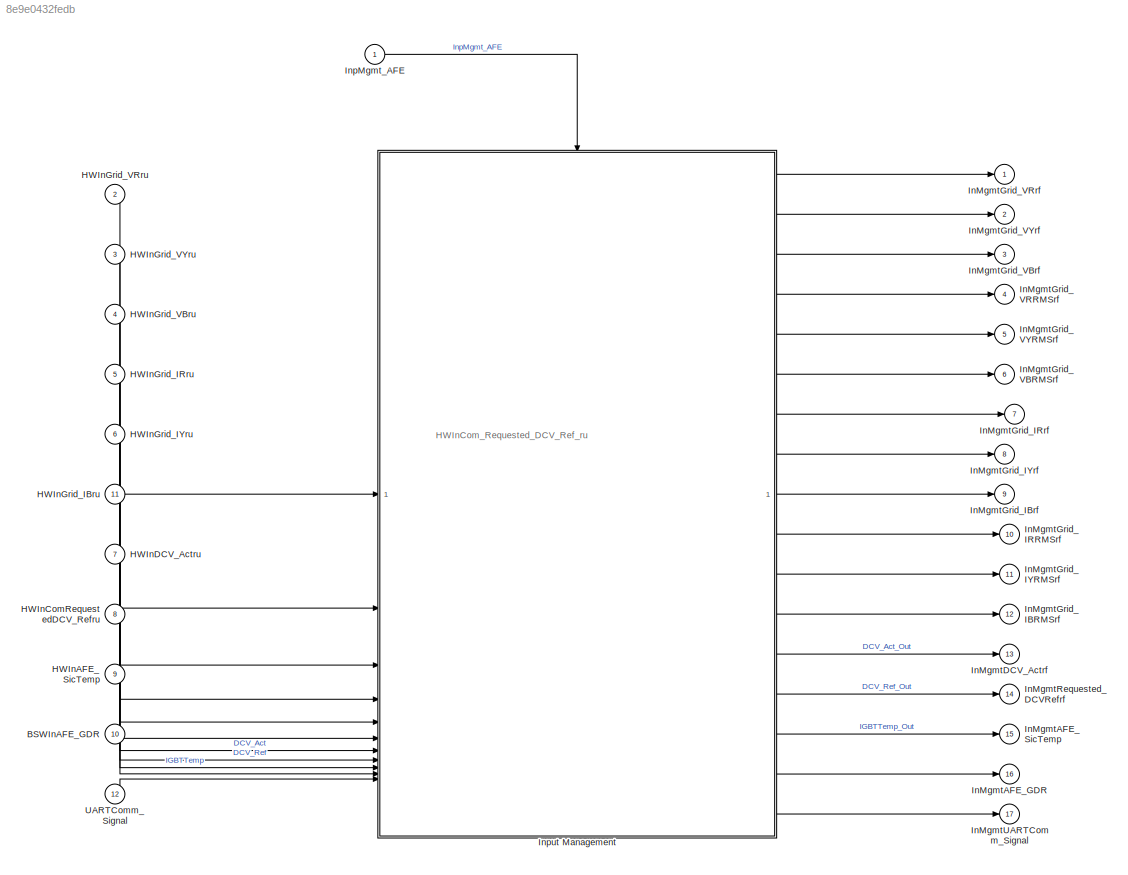
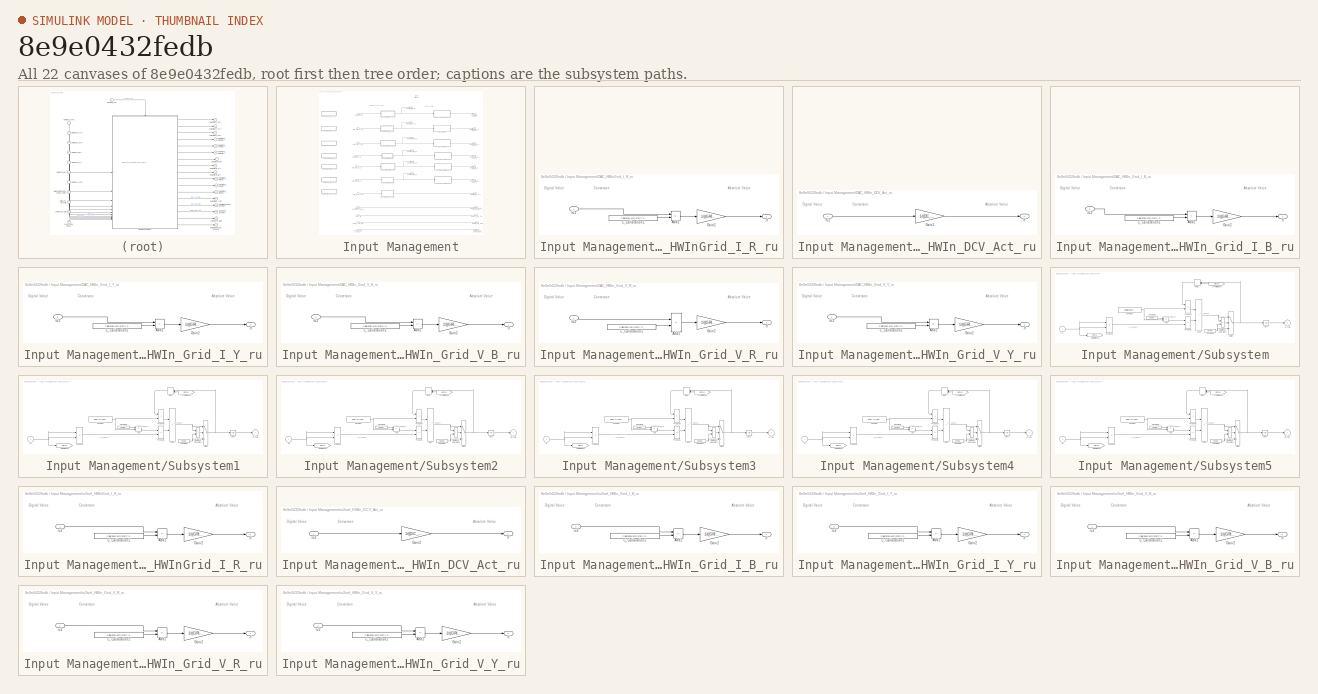
[diagram: thumbnail index - all 22 canvases of the model, root first then tree order]
MODEL slx_8e9e0432fedb
KIND model
BLOCK [Inport] BSWInAFE_GDR
  OutDataTypeStr = boolean
  Port = 10
BLOCK [Inport] HWInAFE_SicTemp
  OutDataTypeStr = boolean
  Port = 9
BLOCK [Inport] HWInComRequestedDCV_Refru
  OutDataTypeStr = uint16
  Port = 8
BLOCK [Inport] HWInDCV_Actru
  OutDataTypeStr = uint16
  Port = 7
BLOCK [Inport] HWInGrid_IBru
  OutDataTypeStr = uint16
  Port = 11
BLOCK [Inport] HWInGrid_IRru
  OutDataTypeStr = uint16
  Port = 5
BLOCK [Inport] HWInGrid_IYru
  OutDataTypeStr = uint16
  Port = 6
BLOCK [Inport] HWInGrid_VBru
  OutDataTypeStr = uint16
  Port = 4
BLOCK [Inport] HWInGrid_VRru
  OutDataTypeStr = single
  Port = 2
BLOCK [Inport] HWInGrid_VYru
  OutDataTypeStr = uint16
  Port = 3
BLOCK [Outport] InMgmtAFE_GDR
  OutDataTypeStr = boolean
  Port = 16
  VectorParamsAs1DForOutWhenUnconnected = off
BLOCK [Outport] InMgmtAFE_SicTemp
  OutDataTypeStr = boolean
  Port = 15
  VectorParamsAs1DForOutWhenUnconnected = off
BLOCK [Outport] InMgmtDCV_Actrf
  OutDataTypeStr = single
  Port = 13
  VectorParamsAs1DForOutWhenUnconnected = off
BLOCK [Outport] InMgmtGrid_IBRMSrf
  OutDataTypeStr = single
  Port = 12
  VectorParamsAs1DForOutWhenUnconnected = off
BLOCK [Outport] InMgmtGrid_IBrf
  OutDataTypeStr = single
  Port = 9
  VectorParamsAs1DForOutWhenUnconnected = off
BLOCK [Outport] InMgmtGrid_IRRMSrf
  OutDataTypeStr = single
  Port = 10
  VectorParamsAs1DForOutWhenUnconnected = off
BLOCK [Outport] InMgmtGrid_IRrf
  OutDataTypeStr = single
  Port = 7
  VectorParamsAs1DForOutWhenUnconnected = off
BLOCK [Outport] InMgmtGrid_IYRMSrf
  OutDataTypeStr = single
  Port = 11
  VectorParamsAs1DForOutWhenUnconnected = off
BLOCK [Outport] InMgmtGrid_IYrf
  OutDataTypeStr = single
  Port = 8
  VectorParamsAs1DForOutWhenUnconnected = off
BLOCK [Outport] InMgmtGrid_VBRMSrf
  OutDataTypeStr = single
  Port = 6
  VectorParamsAs1DForOutWhenUnconnected = off
BLOCK [Outport] InMgmtGrid_VBrf
  OutDataTypeStr = single
  Port = 3
  VectorParamsAs1DForOutWhenUnconnected = off
BLOCK [Outport] InMgmtGrid_VRRMSrf
  OutDataTypeStr = single
  Port = 4
  VectorParamsAs1DForOutWhenUnconnected = off
BLOCK [Outport] InMgmtGrid_VRrf
  OutDataTypeStr = single
  VectorParamsAs1DForOutWhenUnconnected = off
BLOCK [Outport] InMgmtGrid_VYRMSrf
  OutDataTypeStr = single
  Port = 5
  VectorParamsAs1DForOutWhenUnconnected = off
BLOCK [Outport] InMgmtGrid_VYrf
  OutDataTypeStr = single
  Port = 2
  VectorParamsAs1DForOutWhenUnconnected = off
BLOCK [Outport] InMgmtRequested_DCVRefrf
  OutDataTypeStr = uint16
  Port = 14
  VectorParamsAs1DForOutWhenUnconnected = off
BLOCK [Outport] InMgmtUARTComm_Signal
  OutDataTypeStr = boolean
  Port = 17
  VectorParamsAs1DForOutWhenUnconnected = off
BLOCK [Inport] InpMgmt_AFE
  Description = Inverter HVDC voltage
  OutMax = 1000
  OutMin = 0
  OutputFunctionCall = on
  PortDimensions = 1
  SampleTime = 0.001
  SamplingMode = Sample based
  SignalType = real
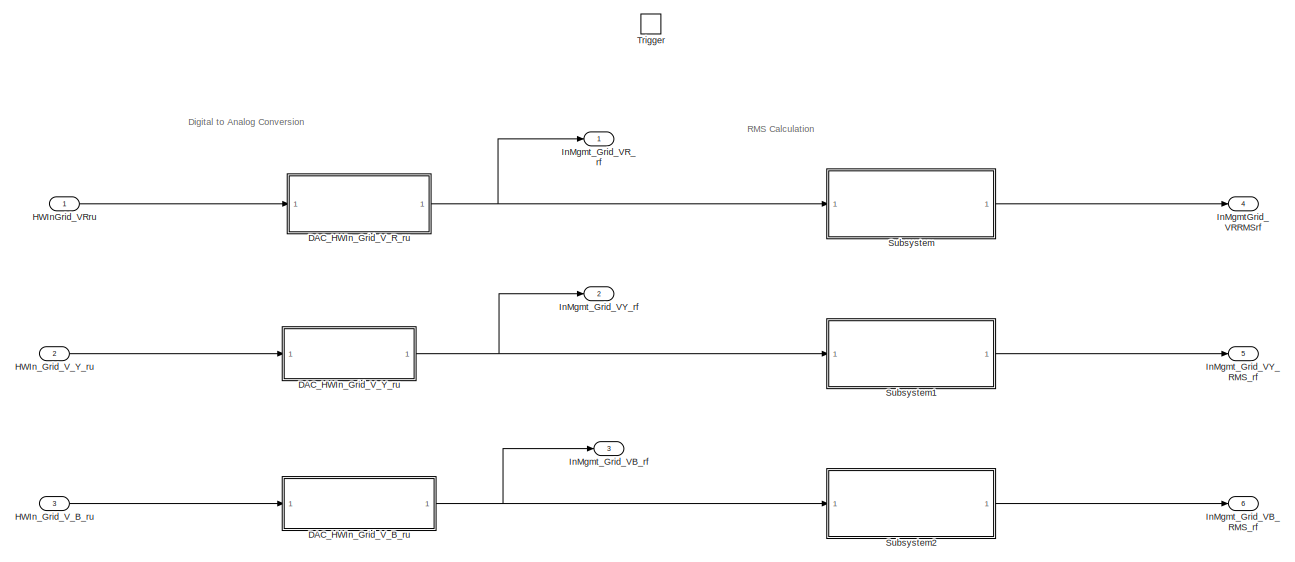
[diagram: Input Management - part 1/3, full width, top band]
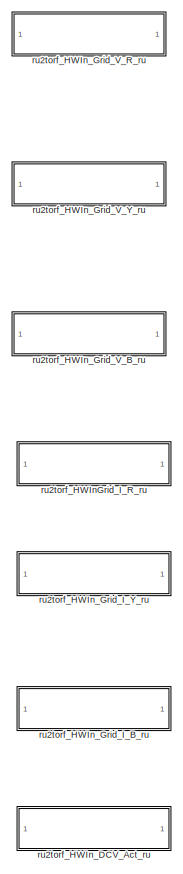
[diagram: Input Management - part 2/3, middle left region]
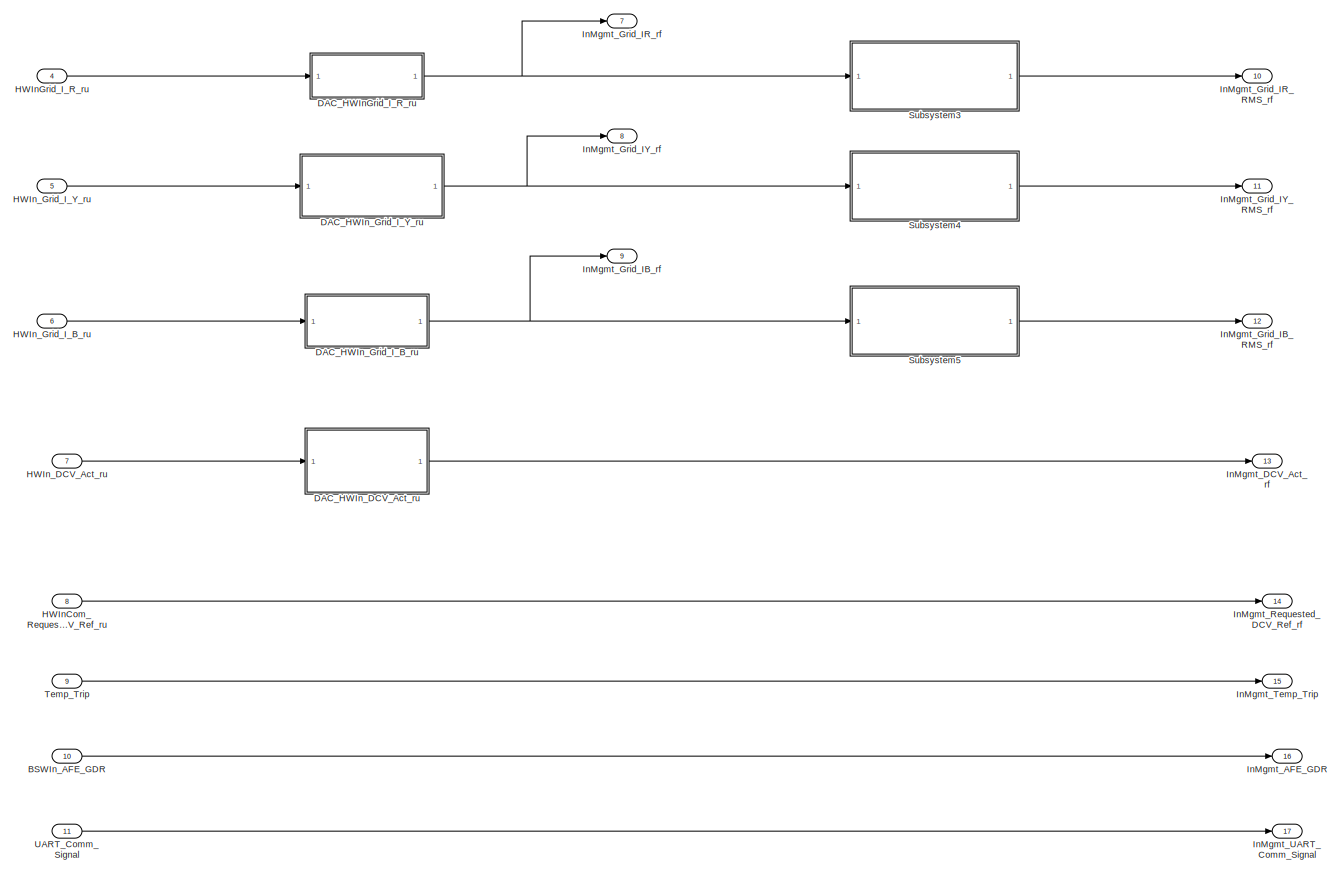
[diagram: Input Management - part 3/3, full width, bottom band]
BLOCK [SubSystem] Input Management
BLOCK [Inport] Input Management/BSWIn_AFE_GDR
  Port = 10
BLOCK [SubSystem] Input Management/DAC_HWInGrid_I_R_ru
BLOCK [Sum] Input Management/DAC_HWInGrid_I_R_ru/Add1
  IconShape = rectangular
  Inputs = +-
BLOCK [Reference] Input Management/DAC_HWInGrid_I_R_ru/C_Calibration1  REF=common_lib/IO/Calibration with Pretty
Print Value
  SourceBlock = common_lib/IO/Calibration with Pretty\nPrint Value
  SourceType = Calibratible Input
BLOCK [Gain] Input Management/DAC_HWInGrid_I_R_ru/Gain2
  Gain = 1/((GRID_CURR_SNSR_GAIN)*(GRID_CURR_ADC_GAIN))
BLOCK [Outport] Input Management/DAC_HWInGrid_I_R_ru/rf
BLOCK [Inport] Input Management/DAC_HWInGrid_I_R_ru/ru2
BLOCK [SubSystem] Input Management/DAC_HWIn_DCV_Act_ru
BLOCK [Gain] Input Management/DAC_HWIn_DCV_Act_ru/Gain2
  Gain = 1/((DC_VOLT_SNSR_GAIN)*(DC_VOLT_ADC_GAIN))
  OutDataTypeStr = single
BLOCK [Outport] Input Management/DAC_HWIn_DCV_Act_ru/rf
BLOCK [Inport] Input Management/DAC_HWIn_DCV_Act_ru/ru2
BLOCK [SubSystem] Input Management/DAC_HWIn_Grid_I_B_ru
BLOCK [Sum] Input Management/DAC_HWIn_Grid_I_B_ru/Add1
  IconShape = rectangular
  Inputs = +-
BLOCK [Reference] Input Management/DAC_HWIn_Grid_I_B_ru/C_Calibration1  REF=common_lib/IO/Calibration with Pretty
Print Value
  SourceBlock = common_lib/IO/Calibration with Pretty\nPrint Value
  SourceType = Calibratible Input
BLOCK [Gain] Input Management/DAC_HWIn_Grid_I_B_ru/Gain2
  Gain = 1/((GRID_CURR_SNSR_GAIN)*(GRID_CURR_ADC_GAIN))
BLOCK [Outport] Input Management/DAC_HWIn_Grid_I_B_ru/rf
BLOCK [Inport] Input Management/DAC_HWIn_Grid_I_B_ru/ru2
BLOCK [SubSystem] Input Management/DAC_HWIn_Grid_I_Y_ru
BLOCK [Sum] Input Management/DAC_HWIn_Grid_I_Y_ru/Add1
  IconShape = rectangular
  Inputs = +-
BLOCK [Reference] Input Management/DAC_HWIn_Grid_I_Y_ru/C_Calibration1  REF=common_lib/IO/Calibration with Pretty
Print Value
  SourceBlock = common_lib/IO/Calibration with Pretty\nPrint Value
  SourceType = Calibratible Input
BLOCK [Gain] Input Management/DAC_HWIn_Grid_I_Y_ru/Gain2
  Gain = 1/((GRID_CURR_SNSR_GAIN)*(GRID_CURR_ADC_GAIN))
BLOCK [Outport] Input Management/DAC_HWIn_Grid_I_Y_ru/rf
BLOCK [Inport] Input Management/DAC_HWIn_Grid_I_Y_ru/ru2
BLOCK [SubSystem] Input Management/DAC_HWIn_Grid_V_B_ru
BLOCK [Sum] Input Management/DAC_HWIn_Grid_V_B_ru/Add1
  IconShape = rectangular
  Inputs = +-
BLOCK [Reference] Input Management/DAC_HWIn_Grid_V_B_ru/C_Calibration1  REF=common_lib/IO/Calibration with Pretty
Print Value
  SourceBlock = common_lib/IO/Calibration with Pretty\nPrint Value
  SourceType = Calibratible Input
BLOCK [Gain] Input Management/DAC_HWIn_Grid_V_B_ru/Gain2
  Gain = 1/((GRID_VOLT_SNSR_GAIN)*(GRID_VOLT_ADC_GAIN))
BLOCK [Outport] Input Management/DAC_HWIn_Grid_V_B_ru/rf
BLOCK [Inport] Input Management/DAC_HWIn_Grid_V_B_ru/ru2
BLOCK [SubSystem] Input Management/DAC_HWIn_Grid_V_R_ru
BLOCK [Sum] Input Management/DAC_HWIn_Grid_V_R_ru/Add1
  IconShape = rectangular
  Inputs = +-
BLOCK [Reference] Input Management/DAC_HWIn_Grid_V_R_ru/C_Calibration1  REF=common_lib/IO/Calibration with Pretty
Print Value
  SourceBlock = common_lib/IO/Calibration with Pretty\nPrint Value
  SourceType = Calibratible Input
BLOCK [Gain] Input Management/DAC_HWIn_Grid_V_R_ru/Gain2
  Gain = 1/((GRID_VOLT_SNSR_GAIN)*(GRID_VOLT_ADC_GAIN))
BLOCK [Outport] Input Management/DAC_HWIn_Grid_V_R_ru/rf
BLOCK [Inport] Input Management/DAC_HWIn_Grid_V_R_ru/ru2
BLOCK [SubSystem] Input Management/DAC_HWIn_Grid_V_Y_ru
BLOCK [Sum] Input Management/DAC_HWIn_Grid_V_Y_ru/Add1
  IconShape = rectangular
  Inputs = +-
BLOCK [Reference] Input Management/DAC_HWIn_Grid_V_Y_ru/C_Calibration1  REF=common_lib/IO/Calibration with Pretty
Print Value
  SourceBlock = common_lib/IO/Calibration with Pretty\nPrint Value
  SourceType = Calibratible Input
BLOCK [Gain] Input Management/DAC_HWIn_Grid_V_Y_ru/Gain2
  Gain = 1/((GRID_VOLT_SNSR_GAIN)*(GRID_VOLT_ADC_GAIN))
BLOCK [Outport] Input Management/DAC_HWIn_Grid_V_Y_ru/rf
BLOCK [Inport] Input Management/DAC_HWIn_Grid_V_Y_ru/ru2
BLOCK [Inport] Input Management/HWInCom_Requested_DCV_Ref_ru
  Port = 8
BLOCK [Inport] Input Management/HWInGrid_I_R_ru
  Port = 4
BLOCK [Inport] Input Management/HWInGrid_VRru
BLOCK [Inport] Input Management/HWIn_DCV_Act_ru
  Port = 7
BLOCK [Inport] Input Management/HWIn_Grid_I_B_ru
  Port = 6
BLOCK [Inport] Input Management/HWIn_Grid_I_Y_ru
  Port = 5
BLOCK [Inport] Input Management/HWIn_Grid_V_B_ru
  Port = 3
BLOCK [Inport] Input Management/HWIn_Grid_V_Y_ru
  Port = 2
BLOCK [Outport] Input Management/InMgmtGrid_VRRMSrf
  Port = 4
BLOCK [Outport] Input Management/InMgmt_AFE_GDR
  Port = 16
BLOCK [Outport] Input Management/InMgmt_DCV_Act_rf
  Port = 13
BLOCK [Outport] Input Management/InMgmt_Grid_IB_RMS_rf
  Port = 12
BLOCK [Outport] Input Management/InMgmt_Grid_IB_rf
  Port = 9
BLOCK [Outport] Input Management/InMgmt_Grid_IR_RMS_rf
  Port = 10
BLOCK [Outport] Input Management/InMgmt_Grid_IR_rf
  Port = 7
BLOCK [Outport] Input Management/InMgmt_Grid_IY_RMS_rf
  Port = 11
BLOCK [Outport] Input Management/InMgmt_Grid_IY_rf
  Port = 8
BLOCK [Outport] Input Management/InMgmt_Grid_VB_RMS_rf
  Port = 6
BLOCK [Outport] Input Management/InMgmt_Grid_VB_rf
  Port = 3
BLOCK [Outport] Input Management/InMgmt_Grid_VR_rf
BLOCK [Outport] Input Management/InMgmt_Grid_VY_RMS_rf
  Port = 5
BLOCK [Outport] Input Management/InMgmt_Grid_VY_rf
  Port = 2
BLOCK [Outport] Input Management/InMgmt_Requested_DCV_Ref_rf
  Port = 14
BLOCK [Outport] Input Management/InMgmt_Temp_Trip
  Port = 15
BLOCK [Outport] Input Management/InMgmt_UART_Comm_Signal
  Port = 17
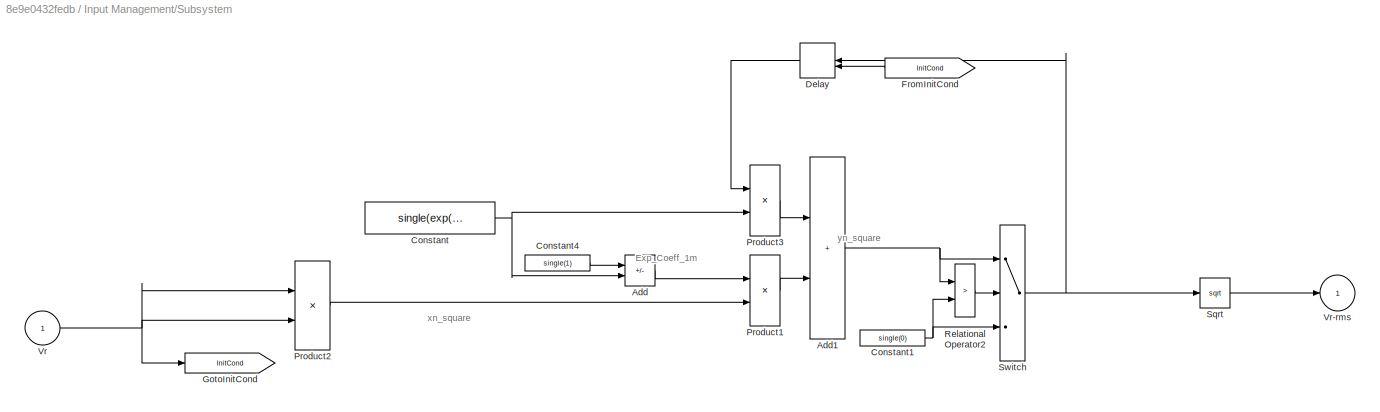
BLOCK [SubSystem] Input Management/Subsystem
BLOCK [Sum] Input Management/Subsystem/Add
  IconShape = rectangular
  Inputs = +-
BLOCK [Sum] Input Management/Subsystem/Add1
  IconShape = rectangular
BLOCK [Constant] Input Management/Subsystem/Constant
  Value = single(exp(-1/(10000*0.02)))
  VectorParams1D = off
BLOCK [Constant] Input Management/Subsystem/Constant1
  SampleTime = -1
  Value = single(0)
BLOCK [Constant] Input Management/Subsystem/Constant4
  SampleTime = -1
  Value = single(1)
BLOCK [Delay] Input Management/Subsystem/Delay
  DelayLength = 1
  InitialConditionSource = Input port
  InputPortMap = u0,p4
BLOCK [From] Input Management/Subsystem/FromInitCond
  GotoTag = InitCond
  NameLocation = top
BLOCK [Goto] Input Management/Subsystem/GotoInitCond
  GotoTag = InitCond
BLOCK [Product] Input Management/Subsystem/Product1
BLOCK [Product] Input Management/Subsystem/Product2
BLOCK [Product] Input Management/Subsystem/Product3
BLOCK [RelationalOperator] Input Management/Subsystem/Relational Operator2
  InputSameDT = off
  Operator = >
  RndMeth = Floor
  ZeroCross = off
BLOCK [Sqrt] Input Management/Subsystem/Sqrt
  SaturateOnIntegerOverflow = off
BLOCK [Switch] Input Management/Subsystem/Switch
  Criteria = u2 ~= 0
  InputSameDT = off
  SaturateOnIntegerOverflow = off
  Threshold = 0.5
  ZeroCross = off
BLOCK [Inport] Input Management/Subsystem/Vr
BLOCK [Outport] Input Management/Subsystem/Vr-rms
  VectorParamsAs1DForOutWhenUnconnected = off
BLOCK [SubSystem] Input Management/Subsystem1
BLOCK [Sum] Input Management/Subsystem1/Add
  IconShape = rectangular
  Inputs = +-
BLOCK [Sum] Input Management/Subsystem1/Add1
  IconShape = rectangular
BLOCK [Constant] Input Management/Subsystem1/Constant
  OutDataTypeStr = single
  Value = exp(-1/(10000*0.02))
  VectorParams1D = off
BLOCK [Constant] Input Management/Subsystem1/Constant1
  SampleTime = -1
  Value = single(0)
BLOCK [Constant] Input Management/Subsystem1/Constant4
  SampleTime = -1
  Value = single(1)
BLOCK [Delay] Input Management/Subsystem1/Delay
  DelayLength = 1
  InitialConditionSource = Input port
  InputPortMap = u0,p4
BLOCK [From] Input Management/Subsystem1/FromInitCond
  GotoTag = InitCond
  NameLocation = top
BLOCK [Goto] Input Management/Subsystem1/GotoInitCond
  GotoTag = InitCond
BLOCK [Product] Input Management/Subsystem1/Product1
BLOCK [Product] Input Management/Subsystem1/Product2
BLOCK [Product] Input Management/Subsystem1/Product3
BLOCK [RelationalOperator] Input Management/Subsystem1/Relational Operator2
  InputSameDT = off
  Operator = >
  RndMeth = Floor
  ZeroCross = off
BLOCK [Sqrt] Input Management/Subsystem1/Sqrt
  SaturateOnIntegerOverflow = off
BLOCK [Switch] Input Management/Subsystem1/Switch
  Criteria = u2 ~= 0
  InputSameDT = off
  SaturateOnIntegerOverflow = off
  Threshold = 0.5
  ZeroCross = off
BLOCK [Inport] Input Management/Subsystem1/Vy
BLOCK [Outport] Input Management/Subsystem1/Vy-rms
  VectorParamsAs1DForOutWhenUnconnected = off
BLOCK [SubSystem] Input Management/Subsystem2
BLOCK [Sum] Input Management/Subsystem2/Add
  IconShape = rectangular
  Inputs = +-
BLOCK [Sum] Input Management/Subsystem2/Add1
  IconShape = rectangular
BLOCK [Constant] Input Management/Subsystem2/Constant
  OutDataTypeStr = single
  Value = exp(-1/(10000*0.02))
  VectorParams1D = off
BLOCK [Constant] Input Management/Subsystem2/Constant1
  SampleTime = -1
  Value = single(0)
BLOCK [Constant] Input Management/Subsystem2/Constant4
  SampleTime = -1
  Value = single(1)
BLOCK [Delay] Input Management/Subsystem2/Delay
  DelayLength = 1
  InitialConditionSource = Input port
  InputPortMap = u0,p4
BLOCK [From] Input Management/Subsystem2/FromInitCond
  GotoTag = InitCond
  NameLocation = top
BLOCK [Goto] Input Management/Subsystem2/GotoInitCond
  GotoTag = InitCond
BLOCK [Product] Input Management/Subsystem2/Product1
BLOCK [Product] Input Management/Subsystem2/Product2
BLOCK [Product] Input Management/Subsystem2/Product3
BLOCK [RelationalOperator] Input Management/Subsystem2/Relational Operator2
  InputSameDT = off
  Operator = >
  RndMeth = Floor
  ZeroCross = off
BLOCK [Sqrt] Input Management/Subsystem2/Sqrt
  SaturateOnIntegerOverflow = off
BLOCK [Switch] Input Management/Subsystem2/Switch
  Criteria = u2 ~= 0
  InputSameDT = off
  SaturateOnIntegerOverflow = off
  Threshold = 0.5
  ZeroCross = off
BLOCK [Inport] Input Management/Subsystem2/Vb
BLOCK [Outport] Input Management/Subsystem2/Vb-rms
  VectorParamsAs1DForOutWhenUnconnected = off
BLOCK [SubSystem] Input Management/Subsystem3
BLOCK [Sum] Input Management/Subsystem3/Add
  IconShape = rectangular
  Inputs = +-
BLOCK [Sum] Input Management/Subsystem3/Add1
  IconShape = rectangular
BLOCK [Constant] Input Management/Subsystem3/Constant
  OutDataTypeStr = single
  Value = exp(-1/(10000*0.02))
  VectorParams1D = off
BLOCK [Constant] Input Management/Subsystem3/Constant1
  SampleTime = -1
  Value = single(0)
BLOCK [Constant] Input Management/Subsystem3/Constant4
  SampleTime = -1
  Value = single(1)
BLOCK [Delay] Input Management/Subsystem3/Delay
  DelayLength = 1
  InitialConditionSource = Input port
  InputPortMap = u0,p4
BLOCK [From] Input Management/Subsystem3/FromInitCond
  GotoTag = InitCond
  NameLocation = top
BLOCK [Goto] Input Management/Subsystem3/GotoInitCond
  GotoTag = InitCond
BLOCK [Inport] Input Management/Subsystem3/Ir
BLOCK [Outport] Input Management/Subsystem3/Ir-rms
  VectorParamsAs1DForOutWhenUnconnected = off
BLOCK [Product] Input Management/Subsystem3/Product1
BLOCK [Product] Input Management/Subsystem3/Product2
BLOCK [Product] Input Management/Subsystem3/Product3
BLOCK [RelationalOperator] Input Management/Subsystem3/Relational Operator2
  InputSameDT = off
  Operator = >
  RndMeth = Floor
  ZeroCross = off
BLOCK [Sqrt] Input Management/Subsystem3/Sqrt
  SaturateOnIntegerOverflow = off
BLOCK [Switch] Input Management/Subsystem3/Switch
  Criteria = u2 ~= 0
  InputSameDT = off
  SaturateOnIntegerOverflow = off
  Threshold = 0.5
  ZeroCross = off
BLOCK [SubSystem] Input Management/Subsystem4
BLOCK [Sum] Input Management/Subsystem4/Add
  IconShape = rectangular
  Inputs = +-
BLOCK [Sum] Input Management/Subsystem4/Add1
  IconShape = rectangular
BLOCK [Constant] Input Management/Subsystem4/Constant
  OutDataTypeStr = single
  Value = exp(-1/(10000*0.02))
  VectorParams1D = off
BLOCK [Constant] Input Management/Subsystem4/Constant1
  SampleTime = -1
  Value = single(0)
BLOCK [Constant] Input Management/Subsystem4/Constant4
  SampleTime = -1
  Value = single(1)
BLOCK [Delay] Input Management/Subsystem4/Delay
  DelayLength = 1
  InitialConditionSource = Input port
  InputPortMap = u0,p4
BLOCK [From] Input Management/Subsystem4/FromInitCond
  GotoTag = InitCond
  NameLocation = top
BLOCK [Goto] Input Management/Subsystem4/GotoInitCond
  GotoTag = InitCond
BLOCK [Inport] Input Management/Subsystem4/Iy
BLOCK [Outport] Input Management/Subsystem4/Iy-rms
  VectorParamsAs1DForOutWhenUnconnected = off
BLOCK [Product] Input Management/Subsystem4/Product1
BLOCK [Product] Input Management/Subsystem4/Product2
BLOCK [Product] Input Management/Subsystem4/Product3
BLOCK [RelationalOperator] Input Management/Subsystem4/Relational Operator2
  InputSameDT = off
  Operator = >
  RndMeth = Floor
  ZeroCross = off
BLOCK [Sqrt] Input Management/Subsystem4/Sqrt
  SaturateOnIntegerOverflow = off
BLOCK [Switch] Input Management/Subsystem4/Switch
  Criteria = u2 ~= 0
  InputSameDT = off
  SaturateOnIntegerOverflow = off
  Threshold = 0.5
  ZeroCross = off
BLOCK [SubSystem] Input Management/Subsystem5
BLOCK [Sum] Input Management/Subsystem5/Add
  IconShape = rectangular
  Inputs = +-
BLOCK [Sum] Input Management/Subsystem5/Add1
  IconShape = rectangular
BLOCK [Constant] Input Management/Subsystem5/Constant
  OutDataTypeStr = single
  Value = exp(-1/(10000*0.02))
  VectorParams1D = off
BLOCK [Constant] Input Management/Subsystem5/Constant1
  SampleTime = -1
  Value = single(0)
BLOCK [Constant] Input Management/Subsystem5/Constant4
  SampleTime = -1
  Value = single(1)
BLOCK [Delay] Input Management/Subsystem5/Delay
  DelayLength = 1
  InitialConditionSource = Input port
  InputPortMap = u0,p4
BLOCK [From] Input Management/Subsystem5/FromInitCond
  GotoTag = InitCond
  NameLocation = top
BLOCK [Goto] Input Management/Subsystem5/GotoInitCond
  GotoTag = InitCond
BLOCK [Inport] Input Management/Subsystem5/Ib
BLOCK [Outport] Input Management/Subsystem5/Ib-rms
  VectorParamsAs1DForOutWhenUnconnected = off
BLOCK [Product] Input Management/Subsystem5/Product1
BLOCK [Product] Input Management/Subsystem5/Product2
BLOCK [Product] Input Management/Subsystem5/Product3
BLOCK [RelationalOperator] Input Management/Subsystem5/Relational Operator2
  InputSameDT = off
  Operator = >
  RndMeth = Floor
  ZeroCross = off
BLOCK [Sqrt] Input Management/Subsystem5/Sqrt
  SaturateOnIntegerOverflow = off
BLOCK [Switch] Input Management/Subsystem5/Switch
  Criteria = u2 ~= 0
  InputSameDT = off
  SaturateOnIntegerOverflow = off
  Threshold = 0.5
  ZeroCross = off
BLOCK [Inport] Input Management/Temp_Trip
  Port = 9
BLOCK [TriggerPort] Input Management/Trigger
  PortDimensions = 1
  SampleTime = -1
  SampleTimeType = periodic
  StatesWhenEnabling = held
  TriggerType = function-call
  VariantControl = (inherit)
BLOCK [Inport] Input Management/UART_Comm_Signal
  Port = 11
BLOCK [SubSystem] Input Management/ru2torf_HWInGrid_I_R_ru
  Commented = on
BLOCK [Sum] Input Management/ru2torf_HWInGrid_I_R_ru/Add1
  IconShape = rectangular
  Inputs = +-
BLOCK [Reference] Input Management/ru2torf_HWInGrid_I_R_ru/C_Calibration1  REF=common_lib/IO/Calibration with Pretty
Print Value
  SourceBlock = common_lib/IO/Calibration with Pretty\nPrint Value
  SourceType = Calibratible Input
BLOCK [Gain] Input Management/ru2torf_HWInGrid_I_R_ru/Gain2
  Gain = 1/((GRID_CURR_SNSR_GAIN)*(GRID_CURR_ADC_GAIN))
  OutDataTypeStr = uint16
BLOCK [Outport] Input Management/ru2torf_HWInGrid_I_R_ru/rf
BLOCK [Inport] Input Management/ru2torf_HWInGrid_I_R_ru/ru2
BLOCK [SubSystem] Input Management/ru2torf_HWIn_DCV_Act_ru
  Commented = on
BLOCK [Gain] Input Management/ru2torf_HWIn_DCV_Act_ru/Gain2
  Gain = 1/((DC_VOLT_SNSR_GAIN)*(DC_VOLT_ADC_GAIN))
  OutDataTypeStr = uint16
BLOCK [Outport] Input Management/ru2torf_HWIn_DCV_Act_ru/rf
BLOCK [Inport] Input Management/ru2torf_HWIn_DCV_Act_ru/ru2
BLOCK [SubSystem] Input Management/ru2torf_HWIn_Grid_I_B_ru
  Commented = on
BLOCK [Sum] Input Management/ru2torf_HWIn_Grid_I_B_ru/Add1
  IconShape = rectangular
  Inputs = +-
BLOCK [Reference] Input Management/ru2torf_HWIn_Grid_I_B_ru/C_Calibration1  REF=common_lib/IO/Calibration with Pretty
Print Value
  SourceBlock = common_lib/IO/Calibration with Pretty\nPrint Value
  SourceType = Calibratible Input
BLOCK [Gain] Input Management/ru2torf_HWIn_Grid_I_B_ru/Gain2
  Gain = 1/((GRID_CURR_SNSR_GAIN)*(GRID_CURR_ADC_GAIN))
  OutDataTypeStr = uint16
BLOCK [Outport] Input Management/ru2torf_HWIn_Grid_I_B_ru/rf
BLOCK [Inport] Input Management/ru2torf_HWIn_Grid_I_B_ru/ru2
BLOCK [SubSystem] Input Management/ru2torf_HWIn_Grid_I_Y_ru
  Commented = on
BLOCK [Sum] Input Management/ru2torf_HWIn_Grid_I_Y_ru/Add1
  IconShape = rectangular
  Inputs = +-
BLOCK [Reference] Input Management/ru2torf_HWIn_Grid_I_Y_ru/C_Calibration1  REF=common_lib/IO/Calibration with Pretty
Print Value
  SourceBlock = common_lib/IO/Calibration with Pretty\nPrint Value
  SourceType = Calibratible Input
BLOCK [Gain] Input Management/ru2torf_HWIn_Grid_I_Y_ru/Gain2
  Gain = 1/((GRID_CURR_SNSR_GAIN)*(GRID_CURR_ADC_GAIN))
  OutDataTypeStr = uint16
BLOCK [Outport] Input Management/ru2torf_HWIn_Grid_I_Y_ru/rf
BLOCK [Inport] Input Management/ru2torf_HWIn_Grid_I_Y_ru/ru2
BLOCK [SubSystem] Input Management/ru2torf_HWIn_Grid_V_B_ru
  Commented = on
BLOCK [Sum] Input Management/ru2torf_HWIn_Grid_V_B_ru/Add1
  IconShape = rectangular
  Inputs = +-
BLOCK [Reference] Input Management/ru2torf_HWIn_Grid_V_B_ru/C_Calibration1  REF=common_lib/IO/Calibration with Pretty
Print Value
  SourceBlock = common_lib/IO/Calibration with Pretty\nPrint Value
  SourceType = Calibratible Input
BLOCK [Gain] Input Management/ru2torf_HWIn_Grid_V_B_ru/Gain2
  Gain = 1/((GRID_VOLT_SNSR_GAIN)*(GRID_VOLT_ADC_GAIN))
  OutDataTypeStr = uint16
BLOCK [Outport] Input Management/ru2torf_HWIn_Grid_V_B_ru/rf
BLOCK [Inport] Input Management/ru2torf_HWIn_Grid_V_B_ru/ru2
BLOCK [SubSystem] Input Management/ru2torf_HWIn_Grid_V_R_ru
  Commented = on
BLOCK [Sum] Input Management/ru2torf_HWIn_Grid_V_R_ru/Add1
  IconShape = rectangular
  Inputs = +-
BLOCK [Reference] Input Management/ru2torf_HWIn_Grid_V_R_ru/C_Calibration1  REF=common_lib/IO/Calibration with Pretty
Print Value
  SourceBlock = common_lib/IO/Calibration with Pretty\nPrint Value
  SourceType = Calibratible Input
BLOCK [Gain] Input Management/ru2torf_HWIn_Grid_V_R_ru/Gain2
  Gain = 1/((GRID_VOLT_SNSR_GAIN)*(GRID_VOLT_ADC_GAIN))
  OutDataTypeStr = uint16
BLOCK [Outport] Input Management/ru2torf_HWIn_Grid_V_R_ru/rf
BLOCK [Inport] Input Management/ru2torf_HWIn_Grid_V_R_ru/ru2
BLOCK [SubSystem] Input Management/ru2torf_HWIn_Grid_V_Y_ru
  Commented = on
BLOCK [Sum] Input Management/ru2torf_HWIn_Grid_V_Y_ru/Add1
  IconShape = rectangular
  Inputs = +-
BLOCK [Reference] Input Management/ru2torf_HWIn_Grid_V_Y_ru/C_Calibration1  REF=common_lib/IO/Calibration with Pretty
Print Value
  SourceBlock = common_lib/IO/Calibration with Pretty\nPrint Value
  SourceType = Calibratible Input
BLOCK [Gain] Input Management/ru2torf_HWIn_Grid_V_Y_ru/Gain2
  Gain = 1/((GRID_VOLT_SNSR_GAIN)*(GRID_VOLT_ADC_GAIN))
  OutDataTypeStr = uint16
BLOCK [Outport] Input Management/ru2torf_HWIn_Grid_V_Y_ru/rf
BLOCK [Inport] Input Management/ru2torf_HWIn_Grid_V_Y_ru/ru2
BLOCK [Inport] UARTComm_Signal
  OutDataTypeStr = boolean
  Port = 12
ANNOTATION (root): HWInCom_Requested_DCV_Ref_ru
ANNOTATION Input Management: Digital to Analog Conversion
ANNOTATION Input Management: RMS Calculation
ANNOTATION Input Management/DAC_HWInGrid_I_R_ru: Absolute Value
ANNOTATION Input Management/DAC_HWInGrid_I_R_ru: Conversion
ANNOTATION Input Management/DAC_HWInGrid_I_R_ru: Digital Value
ANNOTATION Input Management/DAC_HWIn_DCV_Act_ru: Absolute Value
ANNOTATION Input Management/DAC_HWIn_DCV_Act_ru: Conversion
ANNOTATION Input Management/DAC_HWIn_DCV_Act_ru: Digital Value
ANNOTATION Input Management/DAC_HWIn_Grid_I_B_ru: Absolute Value
ANNOTATION Input Management/DAC_HWIn_Grid_I_B_ru: Conversion
ANNOTATION Input Management/DAC_HWIn_Grid_I_B_ru: Digital Value
ANNOTATION Input Management/DAC_HWIn_Grid_I_Y_ru: Absolute Value
ANNOTATION Input Management/DAC_HWIn_Grid_I_Y_ru: Conversion
ANNOTATION Input Management/DAC_HWIn_Grid_I_Y_ru: Digital Value
ANNOTATION Input Management/DAC_HWIn_Grid_V_B_ru: Absolute Value
ANNOTATION Input Management/DAC_HWIn_Grid_V_B_ru: Conversion
ANNOTATION Input Management/DAC_HWIn_Grid_V_B_ru: Digital Value
ANNOTATION Input Management/DAC_HWIn_Grid_V_R_ru: Absolute Value
ANNOTATION Input Management/DAC_HWIn_Grid_V_R_ru: Conversion
ANNOTATION Input Management/DAC_HWIn_Grid_V_R_ru: Digital Value
ANNOTATION Input Management/DAC_HWIn_Grid_V_Y_ru: Absolute Value
ANNOTATION Input Management/DAC_HWIn_Grid_V_Y_ru: Conversion
ANNOTATION Input Management/DAC_HWIn_Grid_V_Y_ru: Digital Value
ANNOTATION Input Management/Subsystem: Exp_Coeff_1m
ANNOTATION Input Management/Subsystem: xn_square
ANNOTATION Input Management/Subsystem: yn_square
ANNOTATION Input Management/Subsystem1: Exp_Coeff_1m
ANNOTATION Input Management/Subsystem1: xn_square
ANNOTATION Input Management/Subsystem1: yn_square
ANNOTATION Input Management/Subsystem2: Exp_Coeff_1m
ANNOTATION Input Management/Subsystem2: xn_square
ANNOTATION Input Management/Subsystem2: yn_square
ANNOTATION Input Management/Subsystem3: Exp_Coeff_1m
ANNOTATION Input Management/Subsystem3: xn_square
ANNOTATION Input Management/Subsystem3: yn_square
ANNOTATION Input Management/Subsystem4: Exp_Coeff_1m
ANNOTATION Input Management/Subsystem4: xn_square
ANNOTATION Input Management/Subsystem4: yn_square
ANNOTATION Input Management/Subsystem5: Exp_Coeff_1m
ANNOTATION Input Management/Subsystem5: xn_square
ANNOTATION Input Management/Subsystem5: yn_square
ANNOTATION Input Management/ru2torf_HWInGrid_I_R_ru: Absolute Value
ANNOTATION Input Management/ru2torf_HWInGrid_I_R_ru: Conversion
ANNOTATION Input Management/ru2torf_HWInGrid_I_R_ru: Digital Value
ANNOTATION Input Management/ru2torf_HWIn_DCV_Act_ru: Absolute Value
ANNOTATION Input Management/ru2torf_HWIn_DCV_Act_ru: Conversion
ANNOTATION Input Management/ru2torf_HWIn_DCV_Act_ru: Digital Value
ANNOTATION Input Management/ru2torf_HWIn_Grid_I_B_ru: Absolute Value
ANNOTATION Input Management/ru2torf_HWIn_Grid_I_B_ru: Conversion
ANNOTATION Input Management/ru2torf_HWIn_Grid_I_B_ru: Digital Value
ANNOTATION Input Management/ru2torf_HWIn_Grid_I_Y_ru: Absolute Value
ANNOTATION Input Management/ru2torf_HWIn_Grid_I_Y_ru: Conversion
ANNOTATION Input Management/ru2torf_HWIn_Grid_I_Y_ru: Digital Value
ANNOTATION Input Management/ru2torf_HWIn_Grid_V_B_ru: Absolute Value
ANNOTATION Input Management/ru2torf_HWIn_Grid_V_B_ru: Conversion
ANNOTATION Input Management/ru2torf_HWIn_Grid_V_B_ru: Digital Value
ANNOTATION Input Management/ru2torf_HWIn_Grid_V_R_ru: Absolute Value
ANNOTATION Input Management/ru2torf_HWIn_Grid_V_R_ru: Conversion
ANNOTATION Input Management/ru2torf_HWIn_Grid_V_R_ru: Digital Value
ANNOTATION Input Management/ru2torf_HWIn_Grid_V_Y_ru: Absolute Value
ANNOTATION Input Management/ru2torf_HWIn_Grid_V_Y_ru: Conversion
ANNOTATION Input Management/ru2torf_HWIn_Grid_V_Y_ru: Digital Value
LINE BSWInAFE_GDR:1 -> Input Management:10
LINE HWInAFE_SicTemp:1 -> Input Management:9
LINE HWInComRequestedDCV_Refru:1 -> Input Management:8
LINE HWInDCV_Actru:1 -> Input Management:7
LINE HWInGrid_IBru:1 -> Input Management:6
LINE HWInGrid_IRru:1 -> Input Management:4
LINE HWInGrid_IYru:1 -> Input Management:5
LINE HWInGrid_VBru:1 -> Input Management:3
LINE HWInGrid_VRru:1 -> Input Management:1
LINE HWInGrid_VYru:1 -> Input Management:2
LINE InpMgmt_AFE:1 -> Input Management:trigger
LINE Input Management/BSWIn_AFE_GDR:1 -> Input Management/InMgmt_AFE_GDR:1
LINE Input Management/DAC_HWInGrid_I_R_ru/Add1:1 -> Input Management/DAC_HWInGrid_I_R_ru/Gain2:1
LINE Input Management/DAC_HWInGrid_I_R_ru/C_Calibration1:1 -> Input Management/DAC_HWInGrid_I_R_ru/Add1:2
LINE Input Management/DAC_HWInGrid_I_R_ru/Gain2:1 -> Input Management/DAC_HWInGrid_I_R_ru/rf:1
LINE Input Management/DAC_HWInGrid_I_R_ru/ru2:1 -> Input Management/DAC_HWInGrid_I_R_ru/Add1:1
NET Input Management/DAC_HWInGrid_I_R_ru:1 -> Input Management/InMgmt_Grid_IR_rf:1, Input Management/Subsystem3:1
LINE Input Management/DAC_HWIn_DCV_Act_ru/Gain2:1 -> Input Management/DAC_HWIn_DCV_Act_ru/rf:1
LINE Input Management/DAC_HWIn_DCV_Act_ru/ru2:1 -> Input Management/DAC_HWIn_DCV_Act_ru/Gain2:1
LINE Input Management/DAC_HWIn_DCV_Act_ru:1 -> Input Management/InMgmt_DCV_Act_rf:1
LINE Input Management/DAC_HWIn_Grid_I_B_ru/Add1:1 -> Input Management/DAC_HWIn_Grid_I_B_ru/Gain2:1
LINE Input Management/DAC_HWIn_Grid_I_B_ru/C_Calibration1:1 -> Input Management/DAC_HWIn_Grid_I_B_ru/Add1:2
LINE Input Management/DAC_HWIn_Grid_I_B_ru/Gain2:1 -> Input Management/DAC_HWIn_Grid_I_B_ru/rf:1
LINE Input Management/DAC_HWIn_Grid_I_B_ru/ru2:1 -> Input Management/DAC_HWIn_Grid_I_B_ru/Add1:1
NET Input Management/DAC_HWIn_Grid_I_B_ru:1 -> Input Management/InMgmt_Grid_IB_rf:1, Input Management/Subsystem5:1
LINE Input Management/DAC_HWIn_Grid_I_Y_ru/Add1:1 -> Input Management/DAC_HWIn_Grid_I_Y_ru/Gain2:1
LINE Input Management/DAC_HWIn_Grid_I_Y_ru/C_Calibration1:1 -> Input Management/DAC_HWIn_Grid_I_Y_ru/Add1:2
LINE Input Management/DAC_HWIn_Grid_I_Y_ru/Gain2:1 -> Input Management/DAC_HWIn_Grid_I_Y_ru/rf:1
LINE Input Management/DAC_HWIn_Grid_I_Y_ru/ru2:1 -> Input Management/DAC_HWIn_Grid_I_Y_ru/Add1:1
NET Input Management/DAC_HWIn_Grid_I_Y_ru:1 -> Input Management/InMgmt_Grid_IY_rf:1, Input Management/Subsystem4:1
LINE Input Management/DAC_HWIn_Grid_V_B_ru/Add1:1 -> Input Management/DAC_HWIn_Grid_V_B_ru/Gain2:1
LINE Input Management/DAC_HWIn_Grid_V_B_ru/C_Calibration1:1 -> Input Management/DAC_HWIn_Grid_V_B_ru/Add1:2
LINE Input Management/DAC_HWIn_Grid_V_B_ru/Gain2:1 -> Input Management/DAC_HWIn_Grid_V_B_ru/rf:1
LINE Input Management/DAC_HWIn_Grid_V_B_ru/ru2:1 -> Input Management/DAC_HWIn_Grid_V_B_ru/Add1:1
NET Input Management/DAC_HWIn_Grid_V_B_ru:1 -> Input Management/InMgmt_Grid_VB_rf:1, Input Management/Subsystem2:1
LINE Input Management/DAC_HWIn_Grid_V_R_ru/Add1:1 -> Input Management/DAC_HWIn_Grid_V_R_ru/Gain2:1
LINE Input Management/DAC_HWIn_Grid_V_R_ru/C_Calibration1:1 -> Input Management/DAC_HWIn_Grid_V_R_ru/Add1:2
LINE Input Management/DAC_HWIn_Grid_V_R_ru/Gain2:1 -> Input Management/DAC_HWIn_Grid_V_R_ru/rf:1
LINE Input Management/DAC_HWIn_Grid_V_R_ru/ru2:1 -> Input Management/DAC_HWIn_Grid_V_R_ru/Add1:1
NET Input Management/DAC_HWIn_Grid_V_R_ru:1 -> Input Management/InMgmt_Grid_VR_rf:1, Input Management/Subsystem:1
LINE Input Management/DAC_HWIn_Grid_V_Y_ru/Add1:1 -> Input Management/DAC_HWIn_Grid_V_Y_ru/Gain2:1
LINE Input Management/DAC_HWIn_Grid_V_Y_ru/C_Calibration1:1 -> Input Management/DAC_HWIn_Grid_V_Y_ru/Add1:2
LINE Input Management/DAC_HWIn_Grid_V_Y_ru/Gain2:1 -> Input Management/DAC_HWIn_Grid_V_Y_ru/rf:1
LINE Input Management/DAC_HWIn_Grid_V_Y_ru/ru2:1 -> Input Management/DAC_HWIn_Grid_V_Y_ru/Add1:1
NET Input Management/DAC_HWIn_Grid_V_Y_ru:1 -> Input Management/InMgmt_Grid_VY_rf:1, Input Management/Subsystem1:1
LINE Input Management/HWInCom_Requested_DCV_Ref_ru:1 -> Input Management/InMgmt_Requested_DCV_Ref_rf:1
LINE Input Management/HWInGrid_I_R_ru:1 -> Input Management/DAC_HWInGrid_I_R_ru:1
LINE Input Management/HWInGrid_VRru:1 -> Input Management/DAC_HWIn_Grid_V_R_ru:1
LINE Input Management/HWIn_DCV_Act_ru:1 -> Input Management/DAC_HWIn_DCV_Act_ru:1
LINE Input Management/HWIn_Grid_I_B_ru:1 -> Input Management/DAC_HWIn_Grid_I_B_ru:1
LINE Input Management/HWIn_Grid_I_Y_ru:1 -> Input Management/DAC_HWIn_Grid_I_Y_ru:1
LINE Input Management/HWIn_Grid_V_B_ru:1 -> Input Management/DAC_HWIn_Grid_V_B_ru:1
LINE Input Management/HWIn_Grid_V_Y_ru:1 -> Input Management/DAC_HWIn_Grid_V_Y_ru:1
NET Input Management/Subsystem/Add1:1 -> Input Management/Subsystem/Relational Operator2:1, Input Management/Subsystem/Switch:1
LINE Input Management/Subsystem/Add:1 -> Input Management/Subsystem/Product1:1
NET Input Management/Subsystem/Constant1:1 -> Input Management/Subsystem/Relational Operator2:2, Input Management/Subsystem/Switch:3
LINE Input Management/Subsystem/Constant4:1 -> Input Management/Subsystem/Add:1
NET Input Management/Subsystem/Constant:1 -> Input Management/Subsystem/Add:2, Input Management/Subsystem/Product3:2
LINE Input Management/Subsystem/Delay:1 -> Input Management/Subsystem/Product3:1
LINE Input Management/Subsystem/FromInitCond:1 -> Input Management/Subsystem/Delay:2
LINE Input Management/Subsystem/Product1:1 -> Input Management/Subsystem/Add1:2
LINE Input Management/Subsystem/Product2:1 -> Input Management/Subsystem/Product1:2
LINE Input Management/Subsystem/Product3:1 -> Input Management/Subsystem/Add1:1
LINE Input Management/Subsystem/Relational Operator2:1 -> Input Management/Subsystem/Switch:2
LINE Input Management/Subsystem/Sqrt:1 -> Input Management/Subsystem/Vr-rms:1
NET Input Management/Subsystem/Switch:1 -> Input Management/Subsystem/Delay:1, Input Management/Subsystem/Sqrt:1
NET Input Management/Subsystem/Vr:1 -> Input Management/Subsystem/GotoInitCond:1, Input Management/Subsystem/Product2:1, Input Management/Subsystem/Product2:2
NET Input Management/Subsystem1/Add1:1 -> Input Management/Subsystem1/Relational Operator2:1, Input Management/Subsystem1/Switch:1
LINE Input Management/Subsystem1/Add:1 -> Input Management/Subsystem1/Product1:1
NET Input Management/Subsystem1/Constant1:1 -> Input Management/Subsystem1/Relational Operator2:2, Input Management/Subsystem1/Switch:3
LINE Input Management/Subsystem1/Constant4:1 -> Input Management/Subsystem1/Add:1
NET Input Management/Subsystem1/Constant:1 -> Input Management/Subsystem1/Add:2, Input Management/Subsystem1/Product3:2
LINE Input Management/Subsystem1/Delay:1 -> Input Management/Subsystem1/Product3:1
LINE Input Management/Subsystem1/FromInitCond:1 -> Input Management/Subsystem1/Delay:2
LINE Input Management/Subsystem1/Product1:1 -> Input Management/Subsystem1/Add1:2
LINE Input Management/Subsystem1/Product2:1 -> Input Management/Subsystem1/Product1:2
LINE Input Management/Subsystem1/Product3:1 -> Input Management/Subsystem1/Add1:1
LINE Input Management/Subsystem1/Relational Operator2:1 -> Input Management/Subsystem1/Switch:2
LINE Input Management/Subsystem1/Sqrt:1 -> Input Management/Subsystem1/Vy-rms:1
NET Input Management/Subsystem1/Switch:1 -> Input Management/Subsystem1/Delay:1, Input Management/Subsystem1/Sqrt:1
NET Input Management/Subsystem1/Vy:1 -> Input Management/Subsystem1/GotoInitCond:1, Input Management/Subsystem1/Product2:1, Input Management/Subsystem1/Product2:2
LINE Input Management/Subsystem1:1 -> Input Management/InMgmt_Grid_VY_RMS_rf:1
NET Input Management/Subsystem2/Add1:1 -> Input Management/Subsystem2/Relational Operator2:1, Input Management/Subsystem2/Switch:1
LINE Input Management/Subsystem2/Add:1 -> Input Management/Subsystem2/Product1:1
NET Input Management/Subsystem2/Constant1:1 -> Input Management/Subsystem2/Relational Operator2:2, Input Management/Subsystem2/Switch:3
LINE Input Management/Subsystem2/Constant4:1 -> Input Management/Subsystem2/Add:1
NET Input Management/Subsystem2/Constant:1 -> Input Management/Subsystem2/Add:2, Input Management/Subsystem2/Product3:2
LINE Input Management/Subsystem2/Delay:1 -> Input Management/Subsystem2/Product3:1
LINE Input Management/Subsystem2/FromInitCond:1 -> Input Management/Subsystem2/Delay:2
LINE Input Management/Subsystem2/Product1:1 -> Input Management/Subsystem2/Add1:2
LINE Input Management/Subsystem2/Product2:1 -> Input Management/Subsystem2/Product1:2
LINE Input Management/Subsystem2/Product3:1 -> Input Management/Subsystem2/Add1:1
LINE Input Management/Subsystem2/Relational Operator2:1 -> Input Management/Subsystem2/Switch:2
LINE Input Management/Subsystem2/Sqrt:1 -> Input Management/Subsystem2/Vb-rms:1
NET Input Management/Subsystem2/Switch:1 -> Input Management/Subsystem2/Delay:1, Input Management/Subsystem2/Sqrt:1
NET Input Management/Subsystem2/Vb:1 -> Input Management/Subsystem2/GotoInitCond:1, Input Management/Subsystem2/Product2:1, Input Management/Subsystem2/Product2:2
LINE Input Management/Subsystem2:1 -> Input Management/InMgmt_Grid_VB_RMS_rf:1
NET Input Management/Subsystem3/Add1:1 -> Input Management/Subsystem3/Relational Operator2:1, Input Management/Subsystem3/Switch:1
LINE Input Management/Subsystem3/Add:1 -> Input Management/Subsystem3/Product1:1
NET Input Management/Subsystem3/Constant1:1 -> Input Management/Subsystem3/Relational Operator2:2, Input Management/Subsystem3/Switch:3
LINE Input Management/Subsystem3/Constant4:1 -> Input Management/Subsystem3/Add:1
NET Input Management/Subsystem3/Constant:1 -> Input Management/Subsystem3/Add:2, Input Management/Subsystem3/Product3:2
LINE Input Management/Subsystem3/Delay:1 -> Input Management/Subsystem3/Product3:1
LINE Input Management/Subsystem3/FromInitCond:1 -> Input Management/Subsystem3/Delay:2
NET Input Management/Subsystem3/Ir:1 -> Input Management/Subsystem3/GotoInitCond:1, Input Management/Subsystem3/Product2:1, Input Management/Subsystem3/Product2:2
LINE Input Management/Subsystem3/Product1:1 -> Input Management/Subsystem3/Add1:2
LINE Input Management/Subsystem3/Product2:1 -> Input Management/Subsystem3/Product1:2
LINE Input Management/Subsystem3/Product3:1 -> Input Management/Subsystem3/Add1:1
LINE Input Management/Subsystem3/Relational Operator2:1 -> Input Management/Subsystem3/Switch:2
LINE Input Management/Subsystem3/Sqrt:1 -> Input Management/Subsystem3/Ir-rms:1
NET Input Management/Subsystem3/Switch:1 -> Input Management/Subsystem3/Delay:1, Input Management/Subsystem3/Sqrt:1
LINE Input Management/Subsystem3:1 -> Input Management/InMgmt_Grid_IR_RMS_rf:1
NET Input Management/Subsystem4/Add1:1 -> Input Management/Subsystem4/Relational Operator2:1, Input Management/Subsystem4/Switch:1
LINE Input Management/Subsystem4/Add:1 -> Input Management/Subsystem4/Product1:1
NET Input Management/Subsystem4/Constant1:1 -> Input Management/Subsystem4/Relational Operator2:2, Input Management/Subsystem4/Switch:3
LINE Input Management/Subsystem4/Constant4:1 -> Input Management/Subsystem4/Add:1
NET Input Management/Subsystem4/Constant:1 -> Input Management/Subsystem4/Add:2, Input Management/Subsystem4/Product3:2
LINE Input Management/Subsystem4/Delay:1 -> Input Management/Subsystem4/Product3:1
LINE Input Management/Subsystem4/FromInitCond:1 -> Input Management/Subsystem4/Delay:2
NET Input Management/Subsystem4/Iy:1 -> Input Management/Subsystem4/GotoInitCond:1, Input Management/Subsystem4/Product2:1, Input Management/Subsystem4/Product2:2
LINE Input Management/Subsystem4/Product1:1 -> Input Management/Subsystem4/Add1:2
LINE Input Management/Subsystem4/Product2:1 -> Input Management/Subsystem4/Product1:2
LINE Input Management/Subsystem4/Product3:1 -> Input Management/Subsystem4/Add1:1
LINE Input Management/Subsystem4/Relational Operator2:1 -> Input Management/Subsystem4/Switch:2
LINE Input Management/Subsystem4/Sqrt:1 -> Input Management/Subsystem4/Iy-rms:1
NET Input Management/Subsystem4/Switch:1 -> Input Management/Subsystem4/Delay:1, Input Management/Subsystem4/Sqrt:1
LINE Input Management/Subsystem4:1 -> Input Management/InMgmt_Grid_IY_RMS_rf:1
NET Input Management/Subsystem5/Add1:1 -> Input Management/Subsystem5/Relational Operator2:1, Input Management/Subsystem5/Switch:1
LINE Input Management/Subsystem5/Add:1 -> Input Management/Subsystem5/Product1:1
NET Input Management/Subsystem5/Constant1:1 -> Input Management/Subsystem5/Relational Operator2:2, Input Management/Subsystem5/Switch:3
LINE Input Management/Subsystem5/Constant4:1 -> Input Management/Subsystem5/Add:1
NET Input Management/Subsystem5/Constant:1 -> Input Management/Subsystem5/Add:2, Input Management/Subsystem5/Product3:2
LINE Input Management/Subsystem5/Delay:1 -> Input Management/Subsystem5/Product3:1
LINE Input Management/Subsystem5/FromInitCond:1 -> Input Management/Subsystem5/Delay:2
NET Input Management/Subsystem5/Ib:1 -> Input Management/Subsystem5/GotoInitCond:1, Input Management/Subsystem5/Product2:1, Input Management/Subsystem5/Product2:2
LINE Input Management/Subsystem5/Product1:1 -> Input Management/Subsystem5/Add1:2
LINE Input Management/Subsystem5/Product2:1 -> Input Management/Subsystem5/Product1:2
LINE Input Management/Subsystem5/Product3:1 -> Input Management/Subsystem5/Add1:1
LINE Input Management/Subsystem5/Relational Operator2:1 -> Input Management/Subsystem5/Switch:2
LINE Input Management/Subsystem5/Sqrt:1 -> Input Management/Subsystem5/Ib-rms:1
NET Input Management/Subsystem5/Switch:1 -> Input Management/Subsystem5/Delay:1, Input Management/Subsystem5/Sqrt:1
LINE Input Management/Subsystem5:1 -> Input Management/InMgmt_Grid_IB_RMS_rf:1
LINE Input Management/Subsystem:1 -> Input Management/InMgmtGrid_VRRMSrf:1
LINE Input Management/Temp_Trip:1 -> Input Management/InMgmt_Temp_Trip:1
LINE Input Management/UART_Comm_Signal:1 -> Input Management/InMgmt_UART_Comm_Signal:1
LINE Input Management/ru2torf_HWInGrid_I_R_ru/Add1:1 -> Input Management/ru2torf_HWInGrid_I_R_ru/Gain2:1
LINE Input Management/ru2torf_HWInGrid_I_R_ru/C_Calibration1:1 -> Input Management/ru2torf_HWInGrid_I_R_ru/Add1:2
LINE Input Management/ru2torf_HWInGrid_I_R_ru/Gain2:1 -> Input Management/ru2torf_HWInGrid_I_R_ru/rf:1
LINE Input Management/ru2torf_HWInGrid_I_R_ru/ru2:1 -> Input Management/ru2torf_HWInGrid_I_R_ru/Add1:1
LINE Input Management/ru2torf_HWIn_DCV_Act_ru/Gain2:1 -> Input Management/ru2torf_HWIn_DCV_Act_ru/rf:1
LINE Input Management/ru2torf_HWIn_DCV_Act_ru/ru2:1 -> Input Management/ru2torf_HWIn_DCV_Act_ru/Gain2:1
LINE Input Management/ru2torf_HWIn_Grid_I_B_ru/Add1:1 -> Input Management/ru2torf_HWIn_Grid_I_B_ru/Gain2:1
LINE Input Management/ru2torf_HWIn_Grid_I_B_ru/C_Calibration1:1 -> Input Management/ru2torf_HWIn_Grid_I_B_ru/Add1:2
LINE Input Management/ru2torf_HWIn_Grid_I_B_ru/Gain2:1 -> Input Management/ru2torf_HWIn_Grid_I_B_ru/rf:1
LINE Input Management/ru2torf_HWIn_Grid_I_B_ru/ru2:1 -> Input Management/ru2torf_HWIn_Grid_I_B_ru/Add1:1
LINE Input Management/ru2torf_HWIn_Grid_I_Y_ru/Add1:1 -> Input Management/ru2torf_HWIn_Grid_I_Y_ru/Gain2:1
LINE Input Management/ru2torf_HWIn_Grid_I_Y_ru/C_Calibration1:1 -> Input Management/ru2torf_HWIn_Grid_I_Y_ru/Add1:2
LINE Input Management/ru2torf_HWIn_Grid_I_Y_ru/Gain2:1 -> Input Management/ru2torf_HWIn_Grid_I_Y_ru/rf:1
LINE Input Management/ru2torf_HWIn_Grid_I_Y_ru/ru2:1 -> Input Management/ru2torf_HWIn_Grid_I_Y_ru/Add1:1
LINE Input Management/ru2torf_HWIn_Grid_V_B_ru/Add1:1 -> Input Management/ru2torf_HWIn_Grid_V_B_ru/Gain2:1
LINE Input Management/ru2torf_HWIn_Grid_V_B_ru/C_Calibration1:1 -> Input Management/ru2torf_HWIn_Grid_V_B_ru/Add1:2
LINE Input Management/ru2torf_HWIn_Grid_V_B_ru/Gain2:1 -> Input Management/ru2torf_HWIn_Grid_V_B_ru/rf:1
LINE Input Management/ru2torf_HWIn_Grid_V_B_ru/ru2:1 -> Input Management/ru2torf_HWIn_Grid_V_B_ru/Add1:1
LINE Input Management/ru2torf_HWIn_Grid_V_R_ru/Add1:1 -> Input Management/ru2torf_HWIn_Grid_V_R_ru/Gain2:1
LINE Input Management/ru2torf_HWIn_Grid_V_R_ru/C_Calibration1:1 -> Input Management/ru2torf_HWIn_Grid_V_R_ru/Add1:2
LINE Input Management/ru2torf_HWIn_Grid_V_R_ru/Gain2:1 -> Input Management/ru2torf_HWIn_Grid_V_R_ru/rf:1
LINE Input Management/ru2torf_HWIn_Grid_V_R_ru/ru2:1 -> Input Management/ru2torf_HWIn_Grid_V_R_ru/Add1:1
LINE Input Management/ru2torf_HWIn_Grid_V_Y_ru/Add1:1 -> Input Management/ru2torf_HWIn_Grid_V_Y_ru/Gain2:1
LINE Input Management/ru2torf_HWIn_Grid_V_Y_ru/C_Calibration1:1 -> Input Management/ru2torf_HWIn_Grid_V_Y_ru/Add1:2
LINE Input Management/ru2torf_HWIn_Grid_V_Y_ru/Gain2:1 -> Input Management/ru2torf_HWIn_Grid_V_Y_ru/rf:1
LINE Input Management/ru2torf_HWIn_Grid_V_Y_ru/ru2:1 -> Input Management/ru2torf_HWIn_Grid_V_Y_ru/Add1:1
LINE Input Management:1 -> InMgmtGrid_VRrf:1
LINE Input Management:10 -> InMgmtGrid_IRRMSrf:1
LINE Input Management:11 -> InMgmtGrid_IYRMSrf:1
LINE Input Management:12 -> InMgmtGrid_IBRMSrf:1
LINE Input Management:13 -> InMgmtDCV_Actrf:1
LINE Input Management:14 -> InMgmtRequested_DCVRefrf:1
LINE Input Management:15 -> InMgmtAFE_SicTemp:1
LINE Input Management:16 -> InMgmtAFE_GDR:1
LINE Input Management:17 -> InMgmtUARTComm_Signal:1
LINE Input Management:2 -> InMgmtGrid_VYrf:1
LINE Input Management:3 -> InMgmtGrid_VBrf:1
LINE Input Management:4 -> InMgmtGrid_VRRMSrf:1
LINE Input Management:5 -> InMgmtGrid_VYRMSrf:1
LINE Input Management:6 -> InMgmtGrid_VBRMSrf:1
LINE Input Management:7 -> InMgmtGrid_IRrf:1
LINE Input Management:8 -> InMgmtGrid_IYrf:1
LINE Input Management:9 -> InMgmtGrid_IBrf:1
LINE UARTComm_Signal:1 -> Input Management:11
note: NET lines group one-source signal fan-out (src -> all destinations, sorted); 1:1 wires keep LINE
CHART Test Sequence states=28 transitions=28
  STATE_LABEL "InMgmt_Grid_Current_Pass\ncoder.extrinsic('assignin');\ncoder.extrinsic('getSection');\ncoder.extrinsic('set_param');\ncoder.extrinsic('get_param');\ncoder.extrinsic('Simulink.data.dictionary.open');\ncoder.extrinsic('discardChanges');\nSWCDictonary = Simulink.data.dictionary.open('SWC_InpMgmt_AFE.sldd');\nmodelData = getSection(SWCDictonary,'Design Data');\nmodelWorkSpace = get_param('SWC_InpMgmt_AFE','Mo...<+342ch>"
  STATE_LABEL 'InMgmt_Grid_Current_Pass_SetValues\nHWInGrid_IRru=uint16(2149);\nHWInGrid_IYru=uint16(2149);\nHWInGrid_IBru=uint16(2149);\n'
  STATE_LABEL "InMgmt_Grid_Current_Pass_VerifyOutputs\nHWInGrid_IRru=uint16(2149);\nHWInGrid_IYru=uint16(2149);\nHWInGrid_IBru=uint16(2149);\n\nverify(abs(InMgmtGrid_IRrf- 3.48667)<=0.00001,'TestCase:InMgmt_Grid_Current_Pass_VerifyOutputs_Verify1','Current Output Value:InMgmtGrid_IRrf = %d',single(InMgmtGrid_IRrf));\nverify(abs(InMgmtGrid_IYrf- 3.48667)<=0.00001,'TestCase:InMgmt_Grid_Current_Pass_VerifyOutputs_Verify2...<+261ch>"
  STATE_LABEL '[\nafter(40,msec)\n]'
  STATE_LABEL 'InMgmt_Grid_Current_Pass_SetValues\nHWInGrid_IRru=uint16(2149);\nHWInGrid_IYru=uint16(2149);\nHWInGrid_IBru=uint16(2149);\n'
  STATE_LABEL "InMgmt_Grid_Current_Pass_VerifyOutputs\nHWInGrid_IRru=uint16(2149);\nHWInGrid_IYru=uint16(2149);\nHWInGrid_IBru=uint16(2149);\n\nverify(abs(InMgmtGrid_IRrf- 3.48667)<=0.00001,'TestCase:InMgmt_Grid_Current_Pass_VerifyOutputs_Verify1','Current Output Value:InMgmtGrid_IRrf = %d',single(InMgmtGrid_IRrf));\nverify(abs(InMgmtGrid_IYrf- 3.48667)<=0.00001,'TestCase:InMgmt_Grid_Current_Pass_VerifyOutputs_Verify2...<+261ch>"
  STATE_LABEL 'InMgmt_Grid_Current_Fail\nendTest = false;\nHWInGrid_VRru=uint16(220);\nHWInGrid_VYru=uint16(220);\nHWInGrid_VBru=uint16(220);\nHWInGrid_IRru=uint16(220);\nHWInGrid_IYru=uint16(220);\nHWInGrid_IBru=uint16(440);\nHWInDCV_Actru=uint16(440);\nHWInComRequestedDCV_Refru=uint16(0);\nHWInAFE_SicTemp=false;\nBSWInAFE_GDR=false;\nUARTComm_Signal=false;\n\nendTest = false;'
  STATE_LABEL 'InMgmt_Grid_Current_Fail_SetValues\nHWInGrid_IRru=uint16(2149);\nHWInGrid_IYru=uint16(2149);\nHWInGrid_IBru=uint16(2149);\n'
  STATE_LABEL "InMgmt_Grid_Current_Fail_VerifyOutputs\nHWInGrid_IRru=uint16(2149);\nHWInGrid_IYru=uint16(2149);\nHWInGrid_IBru=uint16(2149);\n\nverify(abs(InMgmtGrid_IRrf- 4.00001)<=0.00001,'TestCase:InMgmt_Grid_Current_Fail_VerifyOutputs_Verify1','Current Output Value:InMgmtGrid_IRrf = %d',single(InMgmtGrid_IRrf));\nverify(abs(InMgmtGrid_IYrf- 4.00001)<=0.00001,'TestCase:InMgmt_Grid_Current_Fail_VerifyOutputs_Verify2...<+260ch>"
  STATE_LABEL '[\nafter(40,msec)\n]'
  STATE_LABEL 'InMgmt_Grid_Current_Fail_SetValues\nHWInGrid_IRru=uint16(2149);\nHWInGrid_IYru=uint16(2149);\nHWInGrid_IBru=uint16(2149);\n'
  STATE_LABEL "InMgmt_Grid_Current_Fail_VerifyOutputs\nHWInGrid_IRru=uint16(2149);\nHWInGrid_IYru=uint16(2149);\nHWInGrid_IBru=uint16(2149);\n\nverify(abs(InMgmtGrid_IRrf- 4.00001)<=0.00001,'TestCase:InMgmt_Grid_Current_Fail_VerifyOutputs_Verify1','Current Output Value:InMgmtGrid_IRrf = %d',single(InMgmtGrid_IRrf));\nverify(abs(InMgmtGrid_IYrf- 4.00001)<=0.00001,'TestCase:InMgmt_Grid_Current_Fail_VerifyOutputs_Verify2...<+260ch>"
  STATE_LABEL 'InMgmt_Grid_Voltage_Pass\nendTest = false;\nHWInGrid_VRru=uint16(220);\nHWInGrid_VYru=uint16(220);\nHWInGrid_VBru=uint16(220);\nHWInGrid_IRru=uint16(220);\nHWInGrid_IYru=uint16(220);\nHWInGrid_IBru=uint16(440);\nHWInDCV_Actru=uint16(440);\nHWInComRequestedDCV_Refru=uint16(0);\nHWInAFE_SicTemp=false;\nBSWInAFE_GDR=false;\nUARTComm_Signal=false;\n\nendTest = false;'
  STATE_LABEL 'InMgmt_Grid_Voltage_Pass_SetValues\nHWInGrid_VRru=uint16(2149);\nHWInGrid_VYru=uint16(2149);\nHWInGrid_VBru=uint16(2149);\n'
  STATE_LABEL "InMgmt_Grid_Voltage_Pass_VerifyOutputs\nHWInGrid_VRru=uint16(2149);\nHWInGrid_VYru=uint16(2149);\nHWInGrid_VBru=uint16(2149);\n\nverify(abs(InMgmtGrid_VRrf- 16.7401)<=0.00001,'TestCase:InMgmt_Grid_Voltage_Pass_VerifyOutputs_Verify1','Current Output Value:InMgmtGrid_VRrf = %d',single(InMgmtGrid_VRrf));\nverify(abs(InMgmtGrid_VYrf- 16.7401)<=0.00001,'TestCase:InMgmt_Grid_Voltage_Pass_VerifyOutputs_Verify2...<+260ch>"
  STATE_LABEL '[\nafter(40,msec)\n]'
  STATE_LABEL 'InMgmt_Grid_Voltage_Pass_SetValues\nHWInGrid_VRru=uint16(2149);\nHWInGrid_VYru=uint16(2149);\nHWInGrid_VBru=uint16(2149);\n'
  STATE_LABEL "InMgmt_Grid_Voltage_Pass_VerifyOutputs\nHWInGrid_VRru=uint16(2149);\nHWInGrid_VYru=uint16(2149);\nHWInGrid_VBru=uint16(2149);\n\nverify(abs(InMgmtGrid_VRrf- 16.7401)<=0.00001,'TestCase:InMgmt_Grid_Voltage_Pass_VerifyOutputs_Verify1','Current Output Value:InMgmtGrid_VRrf = %d',single(InMgmtGrid_VRrf));\nverify(abs(InMgmtGrid_VYrf- 16.7401)<=0.00001,'TestCase:InMgmt_Grid_Voltage_Pass_VerifyOutputs_Verify2...<+260ch>"
  STATE_LABEL 'InMgmt_Grid_Voltage_Fail\nendTest = false;\nHWInGrid_VRru=uint16(220);\nHWInGrid_VYru=uint16(220);\nHWInGrid_VBru=uint16(220);\nHWInGrid_IRru=uint16(220);\nHWInGrid_IYru=uint16(220);\nHWInGrid_IBru=uint16(440);\nHWInDCV_Actru=uint16(440);\nHWInComRequestedDCV_Refru=uint16(0);\nHWInAFE_SicTemp=false;\nBSWInAFE_GDR=false;\nUARTComm_Signal=false;\n\nendTest = false;'
  STATE_LABEL 'InMgmt_Grid_Voltage_Fail_SetValues\nHWInGrid_VRru=uint16(2149);\nHWInGrid_VYru=uint16(2149);\nHWInGrid_VBru=uint16(2149);\n'
  STATE_LABEL "InMgmt_Grid_Voltage_Fail_VerifyOutputs\nHWInGrid_VRru=uint16(2149);\nHWInGrid_VYru=uint16(2149);\nHWInGrid_VBru=uint16(2149);\n\nverify(abs(InMgmtGrid_VRrf- 17.7401)<=0.00001,'TestCase:InMgmt_Grid_Voltage_Fail_VerifyOutputs_Verify1','Current Output Value:InMgmtGrid_VRrf = %d',single(InMgmtGrid_VRrf));\nverify(abs(InMgmtGrid_VYrf- 17.7401)<=0.00001,'TestCase:InMgmt_Grid_Voltage_Fail_VerifyOutputs_Verify2...<+260ch>"
  STATE_LABEL '[\nafter(40,msec)\n]'
  STATE_LABEL 'InMgmt_Grid_Voltage_Fail_SetValues\nHWInGrid_VRru=uint16(2149);\nHWInGrid_VYru=uint16(2149);\nHWInGrid_VBru=uint16(2149);\n'
  STATE_LABEL "InMgmt_Grid_Voltage_Fail_VerifyOutputs\nHWInGrid_VRru=uint16(2149);\nHWInGrid_VYru=uint16(2149);\nHWInGrid_VBru=uint16(2149);\n\nverify(abs(InMgmtGrid_VRrf- 17.7401)<=0.00001,'TestCase:InMgmt_Grid_Voltage_Fail_VerifyOutputs_Verify1','Current Output Value:InMgmtGrid_VRrf = %d',single(InMgmtGrid_VRrf));\nverify(abs(InMgmtGrid_VYrf- 17.7401)<=0.00001,'TestCase:InMgmt_Grid_Voltage_Fail_VerifyOutputs_Verify2...<+260ch>"
  STATE_LABEL 'InMgmt_DCV_Act_rf\nendTest = false;\nHWInGrid_VRru=uint16(220);\nHWInGrid_VYru=uint16(220);\nHWInGrid_VBru=uint16(220);\nHWInGrid_IRru=uint16(220);\nHWInGrid_IYru=uint16(220);\nHWInGrid_IBru=uint16(440);\nHWInDCV_Actru=uint16(440);\nHWInComRequestedDCV_Refru=uint16(0);\nHWInAFE_SicTemp=false;\nBSWInAFE_GDR=false;\nUARTComm_Signal=false;\n\nendTest = false;'
  STATE_LABEL 'InMgmt_DCV_Act_rf_SetValues\nHWInDCV_Actru=uint16(2149);'
  STATE_LABEL "InMgmt_DCV_Act_rf_VerifyOutputs\nHWInDCV_Actru=uint16(2149);\nverify(abs(InMgmtDCV_Actrf- 1049.573)<=0.0000001,'TestCase:InMgmt_DCV_Act_rf_VerifyOutputs_Verify1','Current Output Value:InMgmtDCV_Actrf = %d',single(InMgmtDCV_Actrf));\nendTest = true;"
  STATE_LABEL '[\nafter(40,msec)\n]'
  STATE_LABEL 'InMgmt_DCV_Act_rf_SetValues\nHWInDCV_Actru=uint16(2149);'
  STATE_LABEL "InMgmt_DCV_Act_rf_VerifyOutputs\nHWInDCV_Actru=uint16(2149);\nverify(abs(InMgmtDCV_Actrf- 1049.573)<=0.0000001,'TestCase:InMgmt_DCV_Act_rf_VerifyOutputs_Verify1','Current Output Value:InMgmtDCV_Actrf = %d',single(InMgmtDCV_Actrf));\nendTest = true;"
  STATE_LABEL 'InMgmt_AFE_RefDCV\nendTest = false;\nHWInGrid_VRru=uint16(220);\nHWInGrid_VYru=uint16(220);\nHWInGrid_VBru=uint16(220);\nHWInGrid_IRru=uint16(220);\nHWInGrid_IYru=uint16(220);\nHWInGrid_IBru=uint16(440);\nHWInDCV_Actru=uint16(440);\nHWInComRequestedDCV_Refru=uint16(0);\nHWInAFE_SicTemp=false;\nBSWInAFE_GDR=false;\nUARTComm_Signal=false;\n\nendTest = false;'
  STATE_LABEL 'InMgmt_AFE_RefDCV_SetValues\nHWInComRequestedDCV_Refru=uint16(25);'
  STATE_LABEL "InMgmt_AFE_RefDCV_VerifyOutputs\nHWInComRequestedDCV_Refru=uint16(25);\nverify(InMgmtRequested_DCVRefrf==uint16(25),'TestCase:InMgmt_AFE_RefDCV_VerifyOutputs_Verify1','Current Output Value:InMgmtRequested_DCVRefrf = %d',single(InMgmtRequested_DCVRefrf));\nendTest = true;"
  STATE_LABEL '[\nafter(40,msec)\n]'
  STATE_LABEL 'InMgmt_AFE_RefDCV_SetValues\nHWInComRequestedDCV_Refru=uint16(25);'
  STATE_LABEL "InMgmt_AFE_RefDCV_VerifyOutputs\nHWInComRequestedDCV_Refru=uint16(25);\nverify(InMgmtRequested_DCVRefrf==uint16(25),'TestCase:InMgmt_AFE_RefDCV_VerifyOutputs_Verify1','Current Output Value:InMgmtRequested_DCVRefrf = %d',single(InMgmtRequested_DCVRefrf));\nendTest = true;"
  STATE_LABEL 'InMgmt_AFE_IGBTTemp\nendTest = false;\nHWInGrid_VRru=uint16(220);\nHWInGrid_VYru=uint16(220);\nHWInGrid_VBru=uint16(220);\nHWInGrid_IRru=uint16(220);\nHWInGrid_IYru=uint16(220);\nHWInGrid_IBru=uint16(440);\nHWInDCV_Actru=uint16(440);\nHWInComRequestedDCV_Refru=uint16(0);\nHWInAFE_SicTemp=false;\nBSWInAFE_GDR=false;\nUARTComm_Signal=false;\n\nendTest = false;'
  STATE_LABEL 'InMgmt_AFE_IGBTTemp_SetValues\nHWInAFE_SicTemp=true;'
  STATE_LABEL "InMgmt_AFE_IGBTTemp_VerifyOutputs\nHWInAFE_SicTemp=true;\nverify(InMgmtAFE_SicTemp==false,'TestCase:InMgmt_AFE_IGBTTemp_VerifyOutputs_Verify1','Current Output Value:InMgmtAFE_SicTemp = %d',single(InMgmtAFE_SicTemp));\nendTest = true;"
  STATE_LABEL '[\nafter(40,msec)\n]'
CHART Test Sequence states=10 transitions=10
  STATE_LABEL "InMgmt_AFE_INIT\ncoder.extrinsic('assignin');\ncoder.extrinsic('getSection');\ncoder.extrinsic('set_param');\ncoder.extrinsic('get_param');\ncoder.extrinsic('Simulink.data.dictionary.open');\ncoder.extrinsic('discardChanges');\nSWCDictonary = Simulink.data.dictionary.open('SWC_InpMgmt_AFE.sldd');\nmodelData = getSection(SWCDictonary,'Design Data');\nmodelWorkSpace = get_param('SWC_InpMgmt_AFE','ModelWorksp...<+340ch>"
  STATE_LABEL 'InMgmt_AFE_INIT_SetValues\nHWIn_DCV_Act_ru=uint16(2149);'
  STATE_LABEL "InMgmt_AFE_INIT_VerifyOutputs\nHWIn_DCV_Act_ru=uint16(2149);\nverify(InMgmt_DCV_Act_rf==uint16(2149),'TestCase:InMgmt_AFE_INIT_VerifyOutputs_Verify1','Current Output Value:InMgmt_DCV_Act_rf = %d',single(InMgmt_DCV_Act_rf));\nendTest = true;"
  STATE_LABEL '[\nafter(40,msec)\n]'
  STATE_LABEL 'InMgmt_AFE_INIT_SetValues\nHWIn_DCV_Act_ru=uint16(2149);'
  STATE_LABEL "InMgmt_AFE_INIT_VerifyOutputs\nHWIn_DCV_Act_ru=uint16(2149);\nverify(InMgmt_DCV_Act_rf==uint16(2149),'TestCase:InMgmt_AFE_INIT_VerifyOutputs_Verify1','Current Output Value:InMgmt_DCV_Act_rf = %d',single(InMgmt_DCV_Act_rf));\nendTest = true;"
  STATE_LABEL 'InMgmt_AFE_RefDCV\nendTest = false;\nHWIn_Grid_V_R_ru=uint16(220);\nHWIn_Grid_V_Y_ru=uint16(220);\nHWIn_Grid_V_B_ru=uint16(220);\nHWIn_Grid_I_R_ru=uint16(220);\nHWIn_Grid_I_Y_ru=uint16(220);\nHWIn_Grid_I_B_ru=uint16(440);\nHWIn_DCV_Act_ru=uint16(440);\nHWInCom_Requested_DCV_Ref_ru=uint16(0);\nHWIn_AFE_IGBTTemp=false;\nBSWIn_AFE_GDR=uint16(0);\n\nendTest = false;'
  STATE_LABEL 'InMgmt_AFE_RefDCV_SetValues\nHWInCom_Requested_DCV_Ref_ru=uint16(25);'
  STATE_LABEL "InMgmt_AFE_RefDCV_VerifyOutputs\nHWInCom_Requested_DCV_Ref_ru=uint16(25);\nverify(InMgmt_Requested_DCV_Ref_rf==uint16(25),'TestCase:InMgmt_AFE_RefDCV_VerifyOutputs_Verify1','Current Output Value:InMgmt_Requested_DCV_Ref_rf = %d',single(InMgmt_Requested_DCV_Ref_rf));\nendTest = true;"
  STATE_LABEL '[\nafter(40,msec)\n]'
  STATE_LABEL 'InMgmt_AFE_RefDCV_SetValues\nHWInCom_Requested_DCV_Ref_ru=uint16(25);'
  STATE_LABEL "InMgmt_AFE_RefDCV_VerifyOutputs\nHWInCom_Requested_DCV_Ref_ru=uint16(25);\nverify(InMgmt_Requested_DCV_Ref_rf==uint16(25),'TestCase:InMgmt_AFE_RefDCV_VerifyOutputs_Verify1','Current Output Value:InMgmt_Requested_DCV_Ref_rf = %d',single(InMgmt_Requested_DCV_Ref_rf));\nendTest = true;"
  STATE_LABEL 'InMgmt_AFE_IGBTTemp\nendTest = false;\nHWIn_Grid_V_R_ru=uint16(220);\nHWIn_Grid_V_Y_ru=uint16(220);\nHWIn_Grid_V_B_ru=uint16(220);\nHWIn_Grid_I_R_ru=uint16(220);\nHWIn_Grid_I_Y_ru=uint16(220);\nHWIn_Grid_I_B_ru=uint16(440);\nHWIn_DCV_Act_ru=uint16(440);\nHWInCom_Requested_DCV_Ref_ru=uint16(0);\nHWIn_AFE_IGBTTemp=false;\nBSWIn_AFE_GDR=uint16(0);\n\nendTest = false;'
  STATE_LABEL 'InMgmt_AFE_IGBTTemp_SetValues\nHWIn_AFE_IGBTTemp=true;'
  STATE_LABEL "InMgmt_AFE_IGBTTemp_VerifyOutputs\nHWIn_AFE_IGBTTemp=true;\nverify(InMgmt_AFE_IGBTTemp==false,'TestCase:InMgmt_AFE_IGBTTemp_VerifyOutputs_Verify1','Current Output Value:InMgmt_AFE_IGBTTemp = %d',single(InMgmt_AFE_IGBTTemp));\nendTest = true;"
  STATE_LABEL '[\nafter(40,msec)\n]'
  STATE_LABEL 'InMgmt_AFE_IGBTTemp_SetValues\nHWIn_AFE_IGBTTemp=true;'
  STATE_LABEL "InMgmt_AFE_IGBTTemp_VerifyOutputs\nHWIn_AFE_IGBTTemp=true;\nverify(InMgmt_AFE_IGBTTemp==false,'TestCase:InMgmt_AFE_IGBTTemp_VerifyOutputs_Verify1','Current Output Value:InMgmt_AFE_IGBTTemp = %d',single(InMgmt_AFE_IGBTTemp));\nendTest = true;"
  STATE_LABEL "Terminate\nendTest = false;\ndiscardChanges(SWCDictonary);\nset_param('InpMgmt_AFE','SimulationCommand','stop');"
